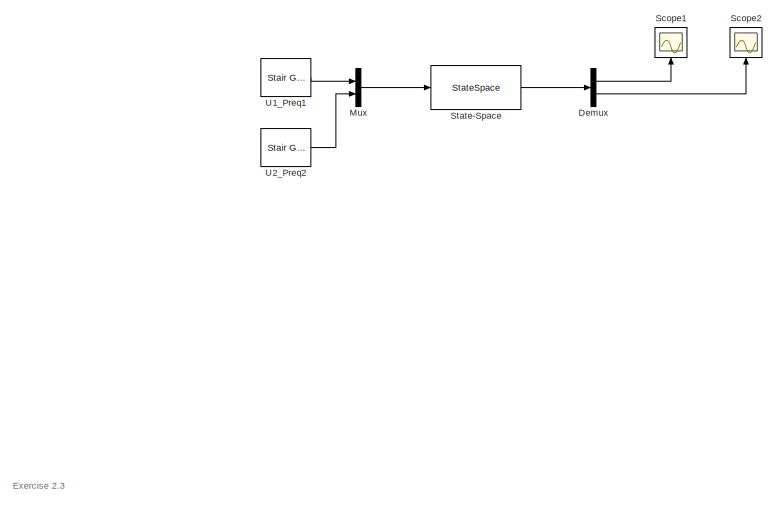
[diagram: root canvas - part 1/5, top left region]
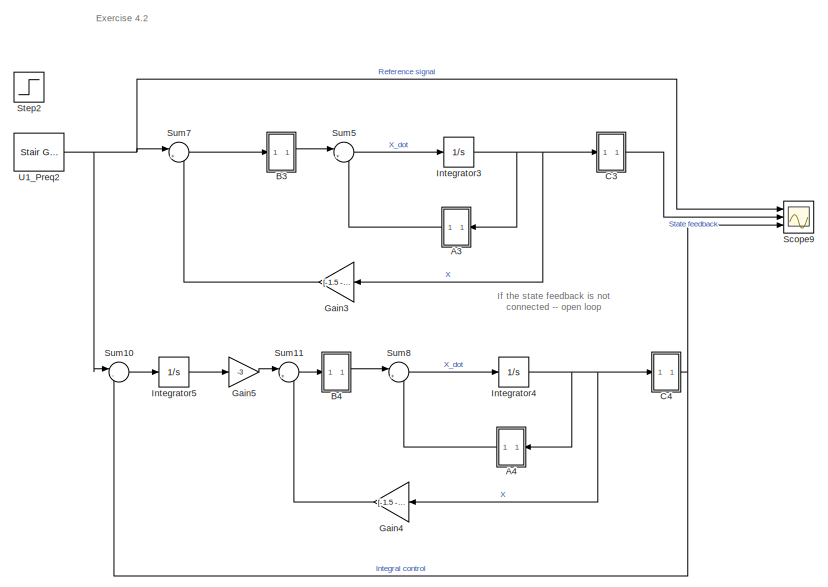
[diagram: root canvas - part 2/5, middle right region]
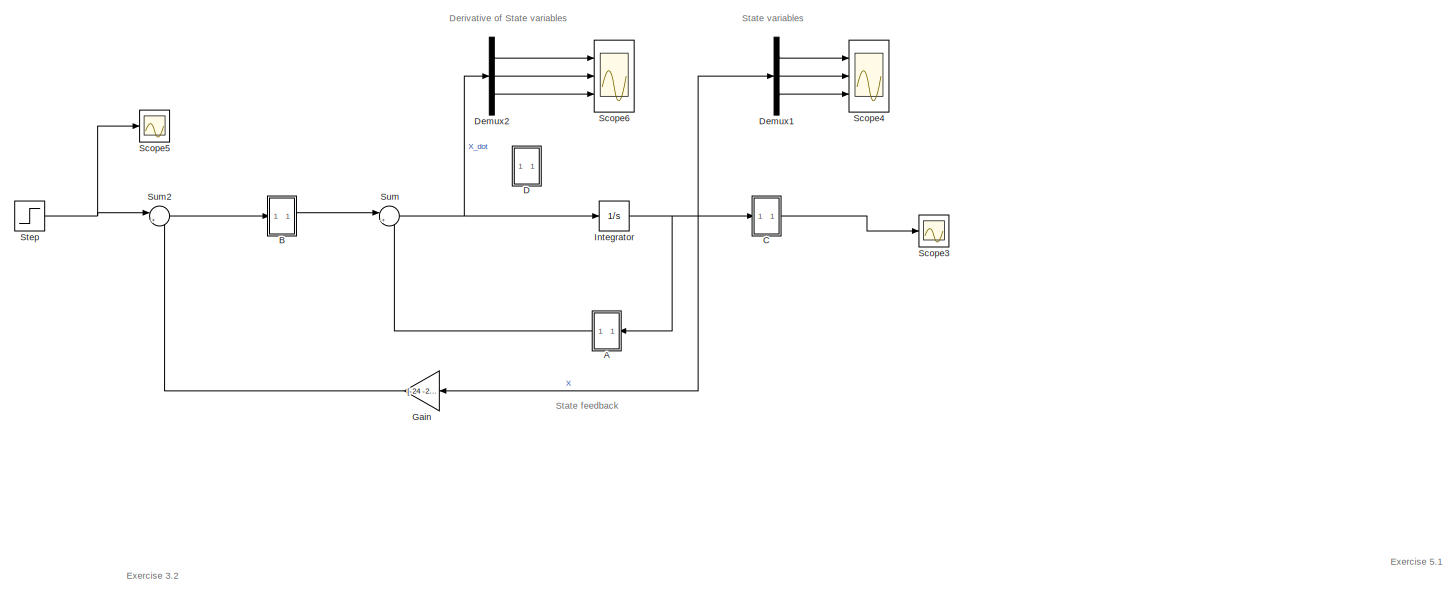
[diagram: root canvas - part 3/5, central region]
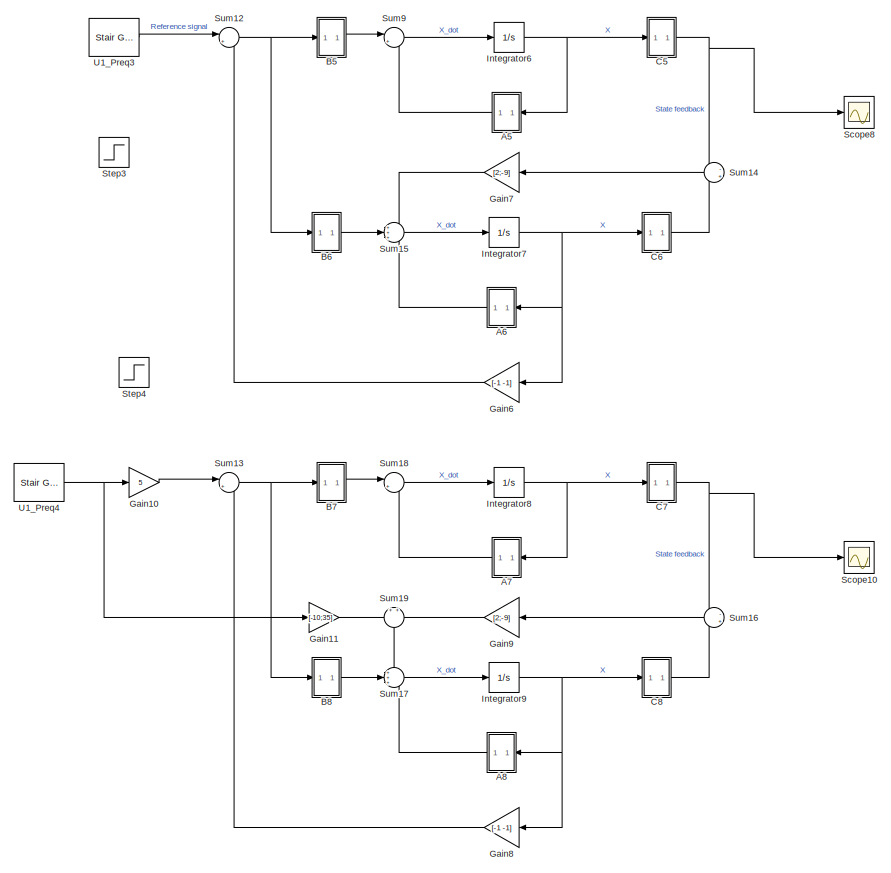
[diagram: root canvas - part 4/5, bottom right region]
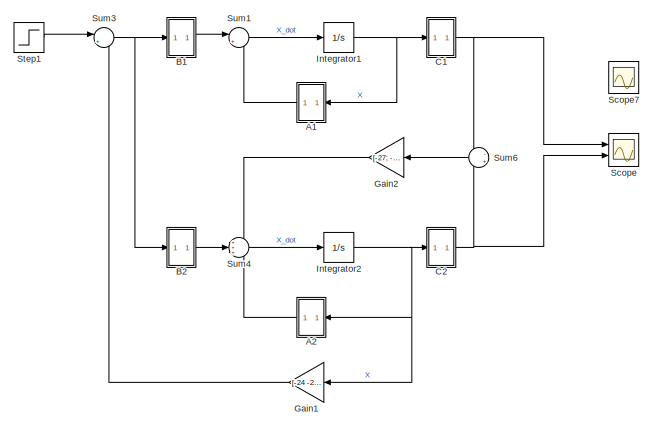
[diagram: root canvas - part 5/5, bottom left region]
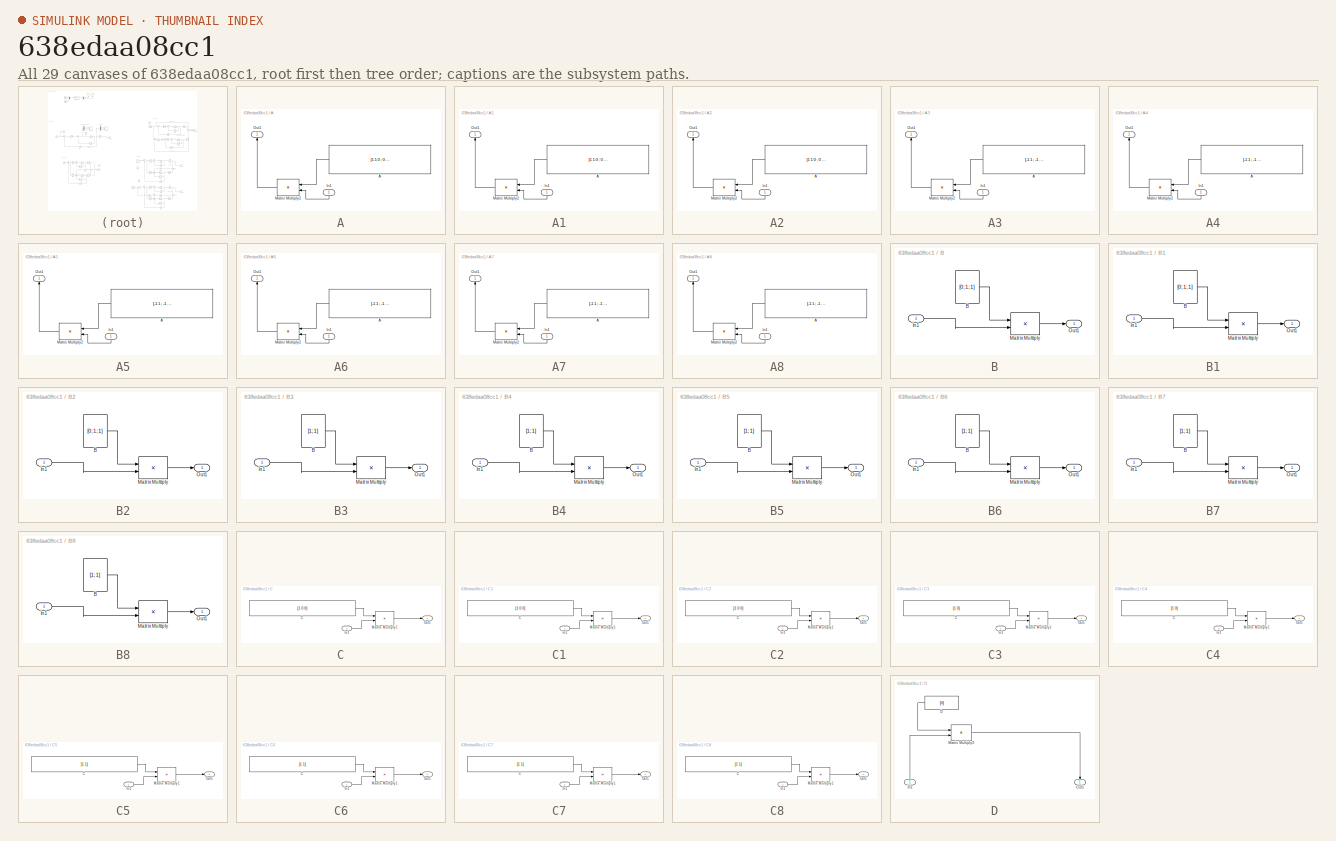
[diagram: thumbnail index - all 29 canvases of the model, root first then tree order]
MODEL slx_638edaa08cc1
KIND model
CONFIG AbsTol = auto
CONFIG EnableMultiTasking = off
CONFIG FixedStep = auto
CONFIG MaxStep = auto
CONFIG MinStep = auto
CONFIG RelTol = 1e-3
CONFIG SampleTimeConstraint = Unconstrained
CONFIG Solver = VariableStepAuto
CONFIG SolverName = VariableStepAuto
CONFIG StartTime = 0.0
CONFIG StopTime = 25
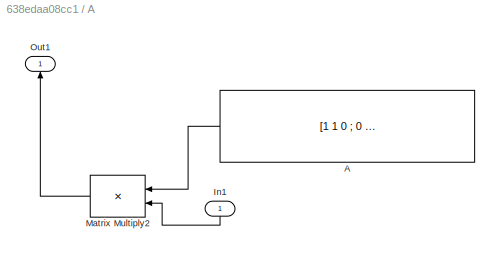
BLOCK [SubSystem] A
  Ports = [1, 1]
  RequestExecContextInheritance = off
  Variant = off
BLOCK [Constant] A/A
  Value = [1 1 0 ; 0 1 1; 0 0 1]
  VectorParams1D = off
BLOCK [Inport] A/In1
  IconDisplay = Port number
BLOCK [Product] A/Matrix Multiply2
  InputSameDT = off
  Multiplication = Matrix(*)
  OutDataTypeStr = Inherit: Inherit via internal rule
  Ports = [2, 1]
  RndMeth = Floor
  SaturateOnIntegerOverflow = off
BLOCK [Outport] A/Out1
  IconDisplay = Port number
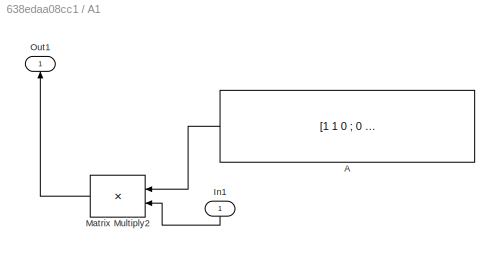
BLOCK [SubSystem] A1
  Ports = [1, 1]
  RequestExecContextInheritance = off
  Variant = off
BLOCK [Constant] A1/A
  Value = [1 1 0 ; 0 1 1; 0 0 1]
  VectorParams1D = off
BLOCK [Inport] A1/In1
  IconDisplay = Port number
BLOCK [Product] A1/Matrix Multiply2
  InputSameDT = off
  Multiplication = Matrix(*)
  OutDataTypeStr = Inherit: Inherit via internal rule
  Ports = [2, 1]
  RndMeth = Floor
  SaturateOnIntegerOverflow = off
BLOCK [Outport] A1/Out1
  IconDisplay = Port number
BLOCK [SubSystem] A2
  Ports = [1, 1]
  RequestExecContextInheritance = off
  Variant = off
BLOCK [Constant] A2/A
  Value = [1 1 0 ; 0 1 1; 0 0 1]
  VectorParams1D = off
BLOCK [Inport] A2/In1
  IconDisplay = Port number
BLOCK [Product] A2/Matrix Multiply2
  InputSameDT = off
  Multiplication = Matrix(*)
  OutDataTypeStr = Inherit: Inherit via internal rule
  Ports = [2, 1]
  RndMeth = Floor
  SaturateOnIntegerOverflow = off
BLOCK [Outport] A2/Out1
  IconDisplay = Port number
BLOCK [SubSystem] A3
  Ports = [1, 1]
  RequestExecContextInheritance = off
  Variant = off
BLOCK [Constant] A3/A
  Value = [-1 1 ; -1 -1]
  VectorParams1D = off
BLOCK [Inport] A3/In1
  IconDisplay = Port number
BLOCK [Product] A3/Matrix Multiply2
  InputSameDT = off
  Multiplication = Matrix(*)
  OutDataTypeStr = Inherit: Inherit via internal rule
  Ports = [2, 1]
  RndMeth = Floor
  SaturateOnIntegerOverflow = off
BLOCK [Outport] A3/Out1
  IconDisplay = Port number
BLOCK [SubSystem] A4
  Ports = [1, 1]
  RequestExecContextInheritance = off
  Variant = off
BLOCK [Constant] A4/A
  Value = [-1 1 ; -1 -1]
  VectorParams1D = off
BLOCK [Inport] A4/In1
  IconDisplay = Port number
BLOCK [Product] A4/Matrix Multiply2
  InputSameDT = off
  Multiplication = Matrix(*)
  OutDataTypeStr = Inherit: Inherit via internal rule
  Ports = [2, 1]
  RndMeth = Floor
  SaturateOnIntegerOverflow = off
BLOCK [Outport] A4/Out1
  IconDisplay = Port number
BLOCK [SubSystem] A5
  Ports = [1, 1]
  RequestExecContextInheritance = off
  Variant = off
BLOCK [Constant] A5/A
  Value = [-1 1 ; -1 -1]
  VectorParams1D = off
BLOCK [Inport] A5/In1
  IconDisplay = Port number
BLOCK [Product] A5/Matrix Multiply2
  InputSameDT = off
  Multiplication = Matrix(*)
  OutDataTypeStr = Inherit: Inherit via internal rule
  Ports = [2, 1]
  RndMeth = Floor
  SaturateOnIntegerOverflow = off
BLOCK [Outport] A5/Out1
  IconDisplay = Port number
BLOCK [SubSystem] A6
  Ports = [1, 1]
  RequestExecContextInheritance = off
  Variant = off
BLOCK [Constant] A6/A
  Value = [-1 1 ; -1 -1]
  VectorParams1D = off
BLOCK [Inport] A6/In1
  IconDisplay = Port number
BLOCK [Product] A6/Matrix Multiply2
  InputSameDT = off
  Multiplication = Matrix(*)
  OutDataTypeStr = Inherit: Inherit via internal rule
  Ports = [2, 1]
  RndMeth = Floor
  SaturateOnIntegerOverflow = off
BLOCK [Outport] A6/Out1
  IconDisplay = Port number
BLOCK [SubSystem] A7
  Ports = [1, 1]
  RequestExecContextInheritance = off
  Variant = off
BLOCK [Constant] A7/A
  Value = [-1 1 ; -1 -1]
  VectorParams1D = off
BLOCK [Inport] A7/In1
  IconDisplay = Port number
BLOCK [Product] A7/Matrix Multiply2
  InputSameDT = off
  Multiplication = Matrix(*)
  OutDataTypeStr = Inherit: Inherit via internal rule
  Ports = [2, 1]
  RndMeth = Floor
  SaturateOnIntegerOverflow = off
BLOCK [Outport] A7/Out1
  IconDisplay = Port number
BLOCK [SubSystem] A8
  Ports = [1, 1]
  RequestExecContextInheritance = off
  Variant = off
BLOCK [Constant] A8/A
  Value = [-1 1 ; -1 -1]
  VectorParams1D = off
BLOCK [Inport] A8/In1
  IconDisplay = Port number
BLOCK [Product] A8/Matrix Multiply2
  InputSameDT = off
  Multiplication = Matrix(*)
  OutDataTypeStr = Inherit: Inherit via internal rule
  Ports = [2, 1]
  RndMeth = Floor
  SaturateOnIntegerOverflow = off
BLOCK [Outport] A8/Out1
  IconDisplay = Port number
BLOCK [SubSystem] B
  Ports = [1, 1]
  RequestExecContextInheritance = off
  Variant = off
BLOCK [Constant] B/B
  Value = [0;\n1;\n1]
  VectorParams1D = off
BLOCK [Inport] B/In1
  IconDisplay = Port number
BLOCK [Product] B/Matrix Multiply
  InputSameDT = off
  Multiplication = Matrix(*)
  OutDataTypeStr = Inherit: Inherit via internal rule
  Ports = [2, 1]
  RndMeth = Floor
  SaturateOnIntegerOverflow = off
BLOCK [Outport] B/Out1
  IconDisplay = Port number
BLOCK [SubSystem] B1
  Ports = [1, 1]
  RequestExecContextInheritance = off
  Variant = off
BLOCK [Constant] B1/B
  Value = [0;\n1;\n1]
  VectorParams1D = off
BLOCK [Inport] B1/In1
  IconDisplay = Port number
BLOCK [Product] B1/Matrix Multiply
  InputSameDT = off
  Multiplication = Matrix(*)
  OutDataTypeStr = Inherit: Inherit via internal rule
  Ports = [2, 1]
  RndMeth = Floor
  SaturateOnIntegerOverflow = off
BLOCK [Outport] B1/Out1
  IconDisplay = Port number
BLOCK [SubSystem] B2
  Ports = [1, 1]
  RequestExecContextInheritance = off
  Variant = off
BLOCK [Constant] B2/B
  Value = [0;\n1;\n1]
  VectorParams1D = off
BLOCK [Inport] B2/In1
  IconDisplay = Port number
BLOCK [Product] B2/Matrix Multiply
  InputSameDT = off
  Multiplication = Matrix(*)
  OutDataTypeStr = Inherit: Inherit via internal rule
  Ports = [2, 1]
  RndMeth = Floor
  SaturateOnIntegerOverflow = off
BLOCK [Outport] B2/Out1
  IconDisplay = Port number
BLOCK [SubSystem] B3
  Ports = [1, 1]
  RequestExecContextInheritance = off
  Variant = off
BLOCK [Constant] B3/B
  Value = [1;\n1]
  VectorParams1D = off
BLOCK [Inport] B3/In1
  IconDisplay = Port number
BLOCK [Product] B3/Matrix Multiply
  InputSameDT = off
  Multiplication = Matrix(*)
  OutDataTypeStr = Inherit: Inherit via internal rule
  Ports = [2, 1]
  RndMeth = Floor
  SaturateOnIntegerOverflow = off
BLOCK [Outport] B3/Out1
  IconDisplay = Port number
BLOCK [SubSystem] B4
  Ports = [1, 1]
  RequestExecContextInheritance = off
  Variant = off
BLOCK [Constant] B4/B
  Value = [1;\n1]
  VectorParams1D = off
BLOCK [Inport] B4/In1
  IconDisplay = Port number
BLOCK [Product] B4/Matrix Multiply
  InputSameDT = off
  Multiplication = Matrix(*)
  OutDataTypeStr = Inherit: Inherit via internal rule
  Ports = [2, 1]
  RndMeth = Floor
  SaturateOnIntegerOverflow = off
BLOCK [Outport] B4/Out1
  IconDisplay = Port number
BLOCK [SubSystem] B5
  Ports = [1, 1]
  RequestExecContextInheritance = off
  Variant = off
BLOCK [Constant] B5/B
  Value = [1;\n1]
  VectorParams1D = off
BLOCK [Inport] B5/In1
  IconDisplay = Port number
BLOCK [Product] B5/Matrix Multiply
  InputSameDT = off
  Multiplication = Matrix(*)
  OutDataTypeStr = Inherit: Inherit via internal rule
  Ports = [2, 1]
  RndMeth = Floor
  SaturateOnIntegerOverflow = off
BLOCK [Outport] B5/Out1
  IconDisplay = Port number
BLOCK [SubSystem] B6
  Ports = [1, 1]
  RequestExecContextInheritance = off
  Variant = off
BLOCK [Constant] B6/B
  Value = [1;\n1]
  VectorParams1D = off
BLOCK [Inport] B6/In1
  IconDisplay = Port number
BLOCK [Product] B6/Matrix Multiply
  InputSameDT = off
  Multiplication = Matrix(*)
  OutDataTypeStr = Inherit: Inherit via internal rule
  Ports = [2, 1]
  RndMeth = Floor
  SaturateOnIntegerOverflow = off
BLOCK [Outport] B6/Out1
  IconDisplay = Port number
BLOCK [SubSystem] B7
  Ports = [1, 1]
  RequestExecContextInheritance = off
  Variant = off
BLOCK [Constant] B7/B
  Value = [1;\n1]
  VectorParams1D = off
BLOCK [Inport] B7/In1
  IconDisplay = Port number
BLOCK [Product] B7/Matrix Multiply
  InputSameDT = off
  Multiplication = Matrix(*)
  OutDataTypeStr = Inherit: Inherit via internal rule
  Ports = [2, 1]
  RndMeth = Floor
  SaturateOnIntegerOverflow = off
BLOCK [Outport] B7/Out1
  IconDisplay = Port number
BLOCK [SubSystem] B8
  Ports = [1, 1]
  RequestExecContextInheritance = off
  Variant = off
BLOCK [Constant] B8/B
  Value = [1;\n1]
  VectorParams1D = off
BLOCK [Inport] B8/In1
  IconDisplay = Port number
BLOCK [Product] B8/Matrix Multiply
  InputSameDT = off
  Multiplication = Matrix(*)
  OutDataTypeStr = Inherit: Inherit via internal rule
  Ports = [2, 1]
  RndMeth = Floor
  SaturateOnIntegerOverflow = off
BLOCK [Outport] B8/Out1
  IconDisplay = Port number
BLOCK [SubSystem] C
  Ports = [1, 1]
  RequestExecContextInheritance = off
  Variant = off
BLOCK [Constant] C/C
  Value = [1 0 0]
  VectorParams1D = off
BLOCK [Inport] C/In1
  IconDisplay = Port number
BLOCK [Product] C/Matrix Multiply1
  InputSameDT = off
  Multiplication = Matrix(*)
  OutDataTypeStr = Inherit: Inherit via internal rule
  Ports = [2, 1]
  RndMeth = Floor
  SaturateOnIntegerOverflow = off
BLOCK [Outport] C/Out1
  IconDisplay = Port number
BLOCK [SubSystem] C1
  Ports = [1, 1]
  RequestExecContextInheritance = off
  Variant = off
BLOCK [Constant] C1/C
  Value = [1 0 0]
  VectorParams1D = off
BLOCK [Inport] C1/In1
  IconDisplay = Port number
BLOCK [Product] C1/Matrix Multiply1
  InputSameDT = off
  Multiplication = Matrix(*)
  OutDataTypeStr = Inherit: Inherit via internal rule
  Ports = [2, 1]
  RndMeth = Floor
  SaturateOnIntegerOverflow = off
BLOCK [Outport] C1/Out1
  IconDisplay = Port number
BLOCK [SubSystem] C2
  Ports = [1, 1]
  RequestExecContextInheritance = off
  Variant = off
BLOCK [Constant] C2/C
  Value = [1 0 0]
  VectorParams1D = off
BLOCK [Inport] C2/In1
  IconDisplay = Port number
BLOCK [Product] C2/Matrix Multiply1
  InputSameDT = off
  Multiplication = Matrix(*)
  OutDataTypeStr = Inherit: Inherit via internal rule
  Ports = [2, 1]
  RndMeth = Floor
  SaturateOnIntegerOverflow = off
BLOCK [Outport] C2/Out1
  IconDisplay = Port number
BLOCK [SubSystem] C3
  Ports = [1, 1]
  RequestExecContextInheritance = off
  Variant = off
BLOCK [Constant] C3/C
  Value = [1 0]
  VectorParams1D = off
BLOCK [Inport] C3/In1
  IconDisplay = Port number
BLOCK [Product] C3/Matrix Multiply1
  InputSameDT = off
  Multiplication = Matrix(*)
  OutDataTypeStr = Inherit: Inherit via internal rule
  Ports = [2, 1]
  RndMeth = Floor
  SaturateOnIntegerOverflow = off
BLOCK [Outport] C3/Out1
  IconDisplay = Port number
BLOCK [SubSystem] C4
  Ports = [1, 1]
  RequestExecContextInheritance = off
  Variant = off
BLOCK [Constant] C4/C
  Value = [1 0]
  VectorParams1D = off
BLOCK [Inport] C4/In1
  IconDisplay = Port number
BLOCK [Product] C4/Matrix Multiply1
  InputSameDT = off
  Multiplication = Matrix(*)
  OutDataTypeStr = Inherit: Inherit via internal rule
  Ports = [2, 1]
  RndMeth = Floor
  SaturateOnIntegerOverflow = off
BLOCK [Outport] C4/Out1
  IconDisplay = Port number
BLOCK [SubSystem] C5
  Ports = [1, 1]
  RequestExecContextInheritance = off
  Variant = off
BLOCK [Constant] C5/C
  Value = [1 1]
  VectorParams1D = off
BLOCK [Inport] C5/In1
  IconDisplay = Port number
BLOCK [Product] C5/Matrix Multiply1
  InputSameDT = off
  Multiplication = Matrix(*)
  OutDataTypeStr = Inherit: Inherit via internal rule
  Ports = [2, 1]
  RndMeth = Floor
  SaturateOnIntegerOverflow = off
BLOCK [Outport] C5/Out1
  IconDisplay = Port number
BLOCK [SubSystem] C6
  Ports = [1, 1]
  RequestExecContextInheritance = off
  Variant = off
BLOCK [Constant] C6/C
  Value = [1 1]
  VectorParams1D = off
BLOCK [Inport] C6/In1
  IconDisplay = Port number
BLOCK [Product] C6/Matrix Multiply1
  InputSameDT = off
  Multiplication = Matrix(*)
  OutDataTypeStr = Inherit: Inherit via internal rule
  Ports = [2, 1]
  RndMeth = Floor
  SaturateOnIntegerOverflow = off
BLOCK [Outport] C6/Out1
  IconDisplay = Port number
BLOCK [SubSystem] C7
  Ports = [1, 1]
  RequestExecContextInheritance = off
  Variant = off
BLOCK [Constant] C7/C
  Value = [1 1]
  VectorParams1D = off
BLOCK [Inport] C7/In1
  IconDisplay = Port number
BLOCK [Product] C7/Matrix Multiply1
  InputSameDT = off
  Multiplication = Matrix(*)
  OutDataTypeStr = Inherit: Inherit via internal rule
  Ports = [2, 1]
  RndMeth = Floor
  SaturateOnIntegerOverflow = off
BLOCK [Outport] C7/Out1
  IconDisplay = Port number
BLOCK [SubSystem] C8
  Ports = [1, 1]
  RequestExecContextInheritance = off
  Variant = off
BLOCK [Constant] C8/C
  Value = [1 1]
  VectorParams1D = off
BLOCK [Inport] C8/In1
  IconDisplay = Port number
BLOCK [Product] C8/Matrix Multiply1
  InputSameDT = off
  Multiplication = Matrix(*)
  OutDataTypeStr = Inherit: Inherit via internal rule
  Ports = [2, 1]
  RndMeth = Floor
  SaturateOnIntegerOverflow = off
BLOCK [Outport] C8/Out1
  IconDisplay = Port number
BLOCK [SubSystem] D
  Ports = [1, 1]
  RequestExecContextInheritance = off
  Variant = off
BLOCK [Constant] D/D
  Value = [0]
  VectorParams1D = off
BLOCK [Inport] D/In1
  IconDisplay = Port number
BLOCK [Product] D/Matrix Multiply3
  InputSameDT = off
  Multiplication = Matrix(*)
  OutDataTypeStr = Inherit: Inherit via internal rule
  Ports = [2, 1]
  RndMeth = Floor
  SaturateOnIntegerOverflow = off
BLOCK [Outport] D/Out1
  IconDisplay = Port number
BLOCK [Demux] Demux
  DisplayOption = bar
  Outputs = 2
  Ports = [1, 2]
BLOCK [Demux] Demux1
  DisplayOption = bar
  Outputs = 3
  Ports = [1, 3]
BLOCK [Demux] Demux2
  DisplayOption = bar
  Outputs = 3
  Ports = [1, 3]
BLOCK [Gain] Gain
  Gain = [-24 -2 -7]
  Multiplication = Matrix(K*u)
  OutDataTypeStr = Inherit: Inherit via internal rule
  ParamDataTypeStr = Inherit: Inherit via internal rule
  SaturateOnIntegerOverflow = off
BLOCK [Gain] Gain1
  Gain = [-24 -2 -7]
  Multiplication = Matrix(K*u)
  OutDataTypeStr = Inherit: Inherit via internal rule
  ParamDataTypeStr = Inherit: Inherit via internal rule
  SaturateOnIntegerOverflow = off
BLOCK [Gain] Gain10
  Gain = 5
  OutDataTypeStr = Inherit: Inherit via internal rule
  ParamDataTypeStr = Inherit: Inherit via internal rule
  SaturateOnIntegerOverflow = off
BLOCK [Gain] Gain11
  Gain = [-10;35]
  OutDataTypeStr = Inherit: Inherit via internal rule
  ParamDataTypeStr = Inherit: Inherit via internal rule
  SaturateOnIntegerOverflow = off
BLOCK [Gain] Gain2
  Gain = [-27; -227; -585]
  Multiplication = Matrix(K*u)
  OutDataTypeStr = Inherit: Inherit via internal rule
  ParamDataTypeStr = Inherit: Inherit via internal rule
  SaturateOnIntegerOverflow = off
BLOCK [Gain] Gain3
  Gain = [-1.5 -2.5]
  Multiplication = Matrix(K*u)
  OutDataTypeStr = Inherit: Inherit via internal rule
  ParamDataTypeStr = Inherit: Inherit via internal rule
  SaturateOnIntegerOverflow = off
BLOCK [Gain] Gain4
  Gain = [-1.5 -2.5]
  Multiplication = Matrix(K*u)
  OutDataTypeStr = Inherit: Inherit via internal rule
  ParamDataTypeStr = Inherit: Inherit via internal rule
  SaturateOnIntegerOverflow = off
BLOCK [Gain] Gain5
  Gain = -3
  OutDataTypeStr = Inherit: Inherit via internal rule
  ParamDataTypeStr = Inherit: Inherit via internal rule
  SaturateOnIntegerOverflow = off
BLOCK [Gain] Gain6
  Gain = [-1 -1]
  Multiplication = Matrix(K*u)
  OutDataTypeStr = Inherit: Inherit via internal rule
  ParamDataTypeStr = Inherit: Inherit via internal rule
  SaturateOnIntegerOverflow = off
BLOCK [Gain] Gain7
  Gain = [2;-9]
  Multiplication = Matrix(K*u)
  OutDataTypeStr = Inherit: Inherit via internal rule
  ParamDataTypeStr = Inherit: Inherit via internal rule
  SaturateOnIntegerOverflow = off
BLOCK [Gain] Gain8
  Gain = [-1 -1]
  Multiplication = Matrix(K*u)
  OutDataTypeStr = Inherit: Inherit via internal rule
  ParamDataTypeStr = Inherit: Inherit via internal rule
  SaturateOnIntegerOverflow = off
BLOCK [Gain] Gain9
  Gain = [2;-9]
  Multiplication = Matrix(K*u)
  OutDataTypeStr = Inherit: Inherit via internal rule
  ParamDataTypeStr = Inherit: Inherit via internal rule
  SaturateOnIntegerOverflow = off
BLOCK [Integrator] Integrator
  Ports = [1, 1]
BLOCK [Integrator] Integrator1
  InitialCondition = -1
  Ports = [1, 1]
BLOCK [Integrator] Integrator2
  Ports = [1, 1]
BLOCK [Integrator] Integrator3
  Ports = [1, 1]
BLOCK [Integrator] Integrator4
  Ports = [1, 1]
BLOCK [Integrator] Integrator5
  Ports = [1, 1]
BLOCK [Integrator] Integrator6
  Ports = [1, 1]
BLOCK [Integrator] Integrator7
  Ports = [1, 1]
BLOCK [Integrator] Integrator8
  Ports = [1, 1]
BLOCK [Integrator] Integrator9
  Ports = [1, 1]
BLOCK [Mux] Mux
  DisplayOption = bar
  Inputs = 2
  Ports = [2, 1]
BLOCK [Scope] Scope
  NumInputPorts = 2
  Ports = [2]
  ScopeSpecificationString = Simulink.scopes.TimeScopeBlockCfg('CurrentConfiguration', extmgr.ConfigurationSet(extmgr.Configuration('Core','General UI',true),extmgr.Configuration('Core','Source UI',true),extmgr.Configuration('Sources','WiredSimulink',true,'DataLoggingVariableName','ScopeData6'),extmgr.Configuration('Visuals','Time Domain',true,'SerializedDisplays',{struct('MinYLimReal','-1.3659','MaxYLimReal','1.86062','YLabe...<+1435ch>
BLOCK [Scope] Scope1
  NumInputPorts = 1
  Ports = [1]
  ScopeSpecificationString = Simulink.scopes.TimeScopeBlockCfg('CurrentConfiguration', extmgr.ConfigurationSet(extmgr.Configuration('Core','General UI',true),extmgr.Configuration('Core','Source UI',true),extmgr.Configuration('Sources','WiredSimulink',true),extmgr.Configuration('Visuals','Time Domain',true,'SerializedDisplays',{struct('MinYLimReal','-10638.76412','MaxYLimReal','14034.46007','YLabelReal','','MinYLimMag','   0.0...<+1383ch>
BLOCK [Scope] Scope10
  NumInputPorts = 1
  Ports = [1]
  ScopeSpecificationString = Simulink.scopes.TimeScopeBlockCfg('CurrentConfiguration', extmgr.ConfigurationSet(extmgr.Configuration('Core','General UI',true),extmgr.Configuration('Core','Source UI',true),extmgr.Configuration('Sources','WiredSimulink',true,'DataLoggingVariableName','ScopeData8'),extmgr.Configuration('Visuals','Time Domain',true,'SerializedDisplays',{struct('MinYLimReal','-1.9742','MaxYLimReal','2.46793','YLabe...<+1443ch>
BLOCK [Scope] Scope2
  NumInputPorts = 1
  Ports = [1]
  ScopeSpecificationString = Simulink.scopes.TimeScopeBlockCfg('CurrentConfiguration', extmgr.ConfigurationSet(extmgr.Configuration('Core','General UI',true),extmgr.Configuration('Core','Source UI',true),extmgr.Configuration('Sources','WiredSimulink',true,'DataLoggingVariableName','ScopeData1'),extmgr.Configuration('Visuals','Time Domain',true,'SerializedDisplays',{struct('MinYLimReal','-1885.48674','MaxYLimReal','16969.38068...<+1424ch>
BLOCK [Scope] Scope3
  NumInputPorts = 1
  Ports = [1]
  ScopeSpecificationString = Simulink.scopes.TimeScopeBlockCfg('CurrentConfiguration', extmgr.ConfigurationSet(extmgr.Configuration('Core','General UI',true),extmgr.Configuration('Core','Source UI',true),extmgr.Configuration('Sources','WiredSimulink',true,'DataLoggingVariableName','ScopeData1'),extmgr.Configuration('Visuals','Time Domain',true,'SerializedDisplays',{struct('MinYLimReal','-0.00926','MaxYLimReal','0.08333','YLab...<+1385ch>
BLOCK [Scope] Scope4
  NumInputPorts = 3
  Ports = [3]
  ScopeSpecificationString = Simulink.scopes.TimeScopeBlockCfg('CurrentConfiguration', extmgr.ConfigurationSet(extmgr.Configuration('Core','General UI',true),extmgr.Configuration('Core','Source UI',true),extmgr.Configuration('Sources','WiredSimulink',true,'DataLoggingVariableName','ScopeData2'),extmgr.Configuration('Visuals','Time Domain',true,'SerializedDisplays',{struct('MinYLimReal','-0.00926','MaxYLimReal','0.0833','YLabe...<+3412ch>
BLOCK [Scope] Scope5
  NumInputPorts = 1
  Ports = [1]
  ScopeSpecificationString = Simulink.scopes.TimeScopeBlockCfg('CurrentConfiguration', extmgr.ConfigurationSet(extmgr.Configuration('Core','General UI',true),extmgr.Configuration('Core','Source UI',true),extmgr.Configuration('Sources','WiredSimulink',true,'DataLoggingVariableName','ScopeData3'),extmgr.Configuration('Visuals','Time Domain',true,'SerializedDisplays',{struct('MinYLimReal','-0.125','MaxYLimReal','1.125','YLabelRe...<+1376ch>
BLOCK [Scope] Scope6
  NumInputPorts = 3
  Ports = [3]
  ScopeSpecificationString = Simulink.scopes.TimeScopeBlockCfg('CurrentConfiguration', extmgr.ConfigurationSet(extmgr.Configuration('Core','General UI',true),extmgr.Configuration('Core','Source UI',true),extmgr.Configuration('Sources','WiredSimulink',true,'DataLoggingVariableName','ScopeData6'),extmgr.Configuration('Visuals','Time Domain',true,'SerializedDisplays',{struct('MinYLimReal','-1727143026.68297','MaxYLimReal','15544...<+3487ch>
BLOCK [Scope] Scope7
  NumInputPorts = 1
  Ports = [1]
  ScopeSpecificationString = Simulink.scopes.TimeScopeBlockCfg('CurrentConfiguration', extmgr.ConfigurationSet(extmgr.Configuration('Core','General UI',true),extmgr.Configuration('Core','Source UI',true),extmgr.Configuration('Sources','WiredSimulink',true,'DataLoggingVariableName','ScopeData4'),extmgr.Configuration('Visuals','Time Domain',true,'SerializedDisplays',{struct('MinYLimReal','-1.00000','MaxYLimReal','1.00000','YLab...<+1393ch>
BLOCK [Scope] Scope8
  NumInputPorts = 1
  Ports = [1]
  ScopeSpecificationString = Simulink.scopes.TimeScopeBlockCfg('CurrentConfiguration', extmgr.ConfigurationSet(extmgr.Configuration('Core','General UI',true),extmgr.Configuration('Core','Source UI',true),extmgr.Configuration('Sources','WiredSimulink',true,'DataLoggingVariableName','ScopeData5'),extmgr.Configuration('Visuals','Time Domain',true,'SerializedDisplays',{struct('MinYLimReal','-0.92942','MaxYLimReal','1.36465','YLab...<+1417ch>
BLOCK [Scope] Scope9
  NumInputPorts = 3
  Ports = [3]
  ScopeSpecificationString = Simulink.scopes.TimeScopeBlockCfg('CurrentConfiguration', extmgr.ConfigurationSet(extmgr.Configuration('Core','General UI',true),extmgr.Configuration('Core','Source UI',true),extmgr.Configuration('Sources','WiredSimulink',true,'DataLoggingVariableName','ScopeData7'),extmgr.Configuration('Visuals','Time Domain',true,'SerializedDisplays',{struct('MinYLimReal','-1.77507','MaxYLimReal','2.66501','YLab...<+1457ch>
BLOCK [StateSpace] State-Space
  A = [-5.2159 -79.1175 -0.7209 -0.7209; 1 0 0 0; 0 0 -1.4430 -0.7209; 0 0 1 0]
  B = [1 0;\n0 0;\n0 1; 0 0]
  C = [-1.3307 2.8087 -0.69530805 -0.69530805;\n0 0 0.7209 0.7209]
  D = [0.9645 0; 0 0]
  Ports = [1, 1]
  X0 = 0
BLOCK [Step] Step
  SampleTime = 0
  Time = 3
BLOCK [Step] Step1
  SampleTime = 0
  Time = 3
BLOCK [Step] Step2
  SampleTime = 0
  Time = 3
BLOCK [Step] Step3
  SampleTime = 0
  Time = 3
BLOCK [Step] Step4
  SampleTime = 0
  Time = 3
BLOCK [Sum] Sum
  IconShape = round
  InputSameDT = off
  Inputs = |++
  OutDataTypeStr = Inherit: Inherit via internal rule
  Ports = [2, 1]
  SaturateOnIntegerOverflow = off
BLOCK [Sum] Sum1
  IconShape = round
  InputSameDT = off
  Inputs = |++
  OutDataTypeStr = Inherit: Inherit via internal rule
  Ports = [2, 1]
  SaturateOnIntegerOverflow = off
BLOCK [Sum] Sum10
  IconShape = round
  InputSameDT = off
  Inputs = |-+
  OutDataTypeStr = Inherit: Inherit via internal rule
  Ports = [2, 1]
  SaturateOnIntegerOverflow = off
BLOCK [Sum] Sum11
  IconShape = round
  InputSameDT = off
  Inputs = |++
  OutDataTypeStr = Inherit: Inherit via internal rule
  Ports = [2, 1]
  SaturateOnIntegerOverflow = off
BLOCK [Sum] Sum12
  IconShape = round
  InputSameDT = off
  Inputs = |++
  OutDataTypeStr = Inherit: Inherit via internal rule
  Ports = [2, 1]
  SaturateOnIntegerOverflow = off
BLOCK [Sum] Sum13
  IconShape = round
  InputSameDT = off
  Inputs = |++
  OutDataTypeStr = Inherit: Inherit via internal rule
  Ports = [2, 1]
  SaturateOnIntegerOverflow = off
BLOCK [Sum] Sum14
  IconShape = round
  InputSameDT = off
  Inputs = -+
  OutDataTypeStr = Inherit: Inherit via internal rule
  Ports = [2, 1]
  SaturateOnIntegerOverflow = off
BLOCK [Sum] Sum15
  IconShape = round
  InputSameDT = off
  Inputs = +++
  OutDataTypeStr = Inherit: Inherit via internal rule
  Ports = [3, 1]
  SaturateOnIntegerOverflow = off
BLOCK [Sum] Sum16
  IconShape = round
  InputSameDT = off
  Inputs = -+
  OutDataTypeStr = Inherit: Inherit via internal rule
  Ports = [2, 1]
  SaturateOnIntegerOverflow = off
BLOCK [Sum] Sum17
  IconShape = round
  InputSameDT = off
  Inputs = +++
  OutDataTypeStr = Inherit: Inherit via internal rule
  Ports = [3, 1]
  SaturateOnIntegerOverflow = off
BLOCK [Sum] Sum18
  IconShape = round
  InputSameDT = off
  Inputs = |++
  OutDataTypeStr = Inherit: Inherit via internal rule
  Ports = [2, 1]
  SaturateOnIntegerOverflow = off
BLOCK [Sum] Sum19
  IconShape = round
  InputSameDT = off
  OutDataTypeStr = Inherit: Inherit via internal rule
  Ports = [2, 1]
  SaturateOnIntegerOverflow = off
BLOCK [Sum] Sum2
  IconShape = round
  InputSameDT = off
  Inputs = |++
  OutDataTypeStr = Inherit: Inherit via internal rule
  Ports = [2, 1]
  SaturateOnIntegerOverflow = off
BLOCK [Sum] Sum3
  IconShape = round
  InputSameDT = off
  Inputs = |++
  OutDataTypeStr = Inherit: Inherit via internal rule
  Ports = [2, 1]
  SaturateOnIntegerOverflow = off
BLOCK [Sum] Sum4
  IconShape = round
  InputSameDT = off
  Inputs = +++
  OutDataTypeStr = Inherit: Inherit via internal rule
  Ports = [3, 1]
  SaturateOnIntegerOverflow = off
BLOCK [Sum] Sum5
  IconShape = round
  InputSameDT = off
  Inputs = |++
  OutDataTypeStr = Inherit: Inherit via internal rule
  Ports = [2, 1]
  SaturateOnIntegerOverflow = off
BLOCK [Sum] Sum6
  IconShape = round
  InputSameDT = off
  Inputs = -+
  OutDataTypeStr = Inherit: Inherit via internal rule
  Ports = [2, 1]
  SaturateOnIntegerOverflow = off
BLOCK [Sum] Sum7
  IconShape = round
  InputSameDT = off
  Inputs = |++
  OutDataTypeStr = Inherit: Inherit via internal rule
  Ports = [2, 1]
  SaturateOnIntegerOverflow = off
BLOCK [Sum] Sum8
  IconShape = round
  InputSameDT = off
  Inputs = |++
  OutDataTypeStr = Inherit: Inherit via internal rule
  Ports = [2, 1]
  SaturateOnIntegerOverflow = off
BLOCK [Sum] Sum9
  IconShape = round
  InputSameDT = off
  Inputs = |++
  OutDataTypeStr = Inherit: Inherit via internal rule
  Ports = [2, 1]
  SaturateOnIntegerOverflow = off
BLOCK [Reference] U1_Preq1  REF=powerlib_meascontrol/Pulse & Signal
Generators/Stair
Generator
  Ports = [0, 1]
  SourceBlock = powerlib_meascontrol/Pulse & Signal\nGenerators/Stair\nGenerator
  SourceType = Stair Generator
BLOCK [Reference] U1_Preq2  REF=powerlib_meascontrol/Pulse & Signal
Generators/Stair
Generator
  Ports = [0, 1]
  SourceBlock = powerlib_meascontrol/Pulse & Signal\nGenerators/Stair\nGenerator
  SourceType = Stair Generator
BLOCK [Reference] U1_Preq3  REF=powerlib_meascontrol/Pulse & Signal
Generators/Stair
Generator
  Ports = [0, 1]
  SourceBlock = powerlib_meascontrol/Pulse & Signal\nGenerators/Stair\nGenerator
  SourceType = Stair Generator
BLOCK [Reference] U1_Preq4  REF=powerlib_meascontrol/Pulse & Signal
Generators/Stair
Generator
  Ports = [0, 1]
  SourceBlock = powerlib_meascontrol/Pulse & Signal\nGenerators/Stair\nGenerator
  SourceType = Stair Generator
BLOCK [Reference] U2_Preq2  REF=powerlib_meascontrol/Pulse & Signal
Generators/Stair
Generator
  Ports = [0, 1]
  SourceBlock = powerlib_meascontrol/Pulse & Signal\nGenerators/Stair\nGenerator
  SourceType = Stair Generator
ANNOTATION (root): Derivative of State variables
ANNOTATION (root): State variables
ANNOTATION (root): Exercise 2.3
ANNOTATION (root): Exercise 3.2
ANNOTATION (root): Exercise 4.2
ANNOTATION (root): Exercise 5.1
ANNOTATION (root): If the state feedback is not connected -- open loop
ANNOTATION (root): State feedback
LINE A/A:1 -> A/Matrix Multiply2:1
LINE A/In1:1 -> A/Matrix Multiply2:2
LINE A/Matrix Multiply2:1 -> A/Out1:1
LINE A1/A:1 -> A1/Matrix Multiply2:1
LINE A1/In1:1 -> A1/Matrix Multiply2:2
LINE A1/Matrix Multiply2:1 -> A1/Out1:1
LINE A1:1 -> Sum1:2
LINE A2/A:1 -> A2/Matrix Multiply2:1
LINE A2/In1:1 -> A2/Matrix Multiply2:2
LINE A2/Matrix Multiply2:1 -> A2/Out1:1
LINE A2:1 -> Sum4:3
LINE A3/A:1 -> A3/Matrix Multiply2:1
LINE A3/In1:1 -> A3/Matrix Multiply2:2
LINE A3/Matrix Multiply2:1 -> A3/Out1:1
LINE A3:1 -> Sum5:2
LINE A4/A:1 -> A4/Matrix Multiply2:1
LINE A4/In1:1 -> A4/Matrix Multiply2:2
LINE A4/Matrix Multiply2:1 -> A4/Out1:1
LINE A4:1 -> Sum8:2
LINE A5/A:1 -> A5/Matrix Multiply2:1
LINE A5/In1:1 -> A5/Matrix Multiply2:2
LINE A5/Matrix Multiply2:1 -> A5/Out1:1
LINE A5:1 -> Sum9:2
LINE A6/A:1 -> A6/Matrix Multiply2:1
LINE A6/In1:1 -> A6/Matrix Multiply2:2
LINE A6/Matrix Multiply2:1 -> A6/Out1:1
LINE A6:1 -> Sum15:3
LINE A7/A:1 -> A7/Matrix Multiply2:1
LINE A7/In1:1 -> A7/Matrix Multiply2:2
LINE A7/Matrix Multiply2:1 -> A7/Out1:1
LINE A7:1 -> Sum18:2
LINE A8/A:1 -> A8/Matrix Multiply2:1
LINE A8/In1:1 -> A8/Matrix Multiply2:2
LINE A8/Matrix Multiply2:1 -> A8/Out1:1
LINE A8:1 -> Sum17:3
LINE A:1 -> Sum:2
LINE B/B:1 -> B/Matrix Multiply:1
LINE B/In1:1 -> B/Matrix Multiply:2
LINE B/Matrix Multiply:1 -> B/Out1:1
LINE B1/B:1 -> B1/Matrix Multiply:1
LINE B1/In1:1 -> B1/Matrix Multiply:2
LINE B1/Matrix Multiply:1 -> B1/Out1:1
LINE B1:1 -> Sum1:1
LINE B2/B:1 -> B2/Matrix Multiply:1
LINE B2/In1:1 -> B2/Matrix Multiply:2
LINE B2/Matrix Multiply:1 -> B2/Out1:1
LINE B2:1 -> Sum4:2
LINE B3/B:1 -> B3/Matrix Multiply:1
LINE B3/In1:1 -> B3/Matrix Multiply:2
LINE B3/Matrix Multiply:1 -> B3/Out1:1
LINE B3:1 -> Sum5:1
LINE B4/B:1 -> B4/Matrix Multiply:1
LINE B4/In1:1 -> B4/Matrix Multiply:2
LINE B4/Matrix Multiply:1 -> B4/Out1:1
LINE B4:1 -> Sum8:1
LINE B5/B:1 -> B5/Matrix Multiply:1
LINE B5/In1:1 -> B5/Matrix Multiply:2
LINE B5/Matrix Multiply:1 -> B5/Out1:1
LINE B5:1 -> Sum9:1
LINE B6/B:1 -> B6/Matrix Multiply:1
LINE B6/In1:1 -> B6/Matrix Multiply:2
LINE B6/Matrix Multiply:1 -> B6/Out1:1
LINE B6:1 -> Sum15:2
LINE B7/B:1 -> B7/Matrix Multiply:1
LINE B7/In1:1 -> B7/Matrix Multiply:2
LINE B7/Matrix Multiply:1 -> B7/Out1:1
LINE B7:1 -> Sum18:1
LINE B8/B:1 -> B8/Matrix Multiply:1
LINE B8/In1:1 -> B8/Matrix Multiply:2
LINE B8/Matrix Multiply:1 -> B8/Out1:1
LINE B8:1 -> Sum17:2
LINE B:1 -> Sum:1
LINE C/C:1 -> C/Matrix Multiply1:1
LINE C/In1:1 -> C/Matrix Multiply1:2
LINE C/Matrix Multiply1:1 -> C/Out1:1
LINE C1/C:1 -> C1/Matrix Multiply1:1
LINE C1/In1:1 -> C1/Matrix Multiply1:2
LINE C1/Matrix Multiply1:1 -> C1/Out1:1
NET C1:1 -> Scope:1, Sum6:1
LINE C2/C:1 -> C2/Matrix Multiply1:1
LINE C2/In1:1 -> C2/Matrix Multiply1:2
LINE C2/Matrix Multiply1:1 -> C2/Out1:1
NET C2:1 -> Scope:2, Sum6:2
LINE C3/C:1 -> C3/Matrix Multiply1:1
LINE C3/In1:1 -> C3/Matrix Multiply1:2
LINE C3/Matrix Multiply1:1 -> C3/Out1:1
LINE C3:1 -> Scope9:2
LINE C4/C:1 -> C4/Matrix Multiply1:1
LINE C4/In1:1 -> C4/Matrix Multiply1:2
LINE C4/Matrix Multiply1:1 -> C4/Out1:1
NET C4:1 -> Scope9:3, Sum10:2
LINE C5/C:1 -> C5/Matrix Multiply1:1
LINE C5/In1:1 -> C5/Matrix Multiply1:2
LINE C5/Matrix Multiply1:1 -> C5/Out1:1
NET C5:1 -> Scope8:1, Sum14:1
LINE C6/C:1 -> C6/Matrix Multiply1:1
LINE C6/In1:1 -> C6/Matrix Multiply1:2
LINE C6/Matrix Multiply1:1 -> C6/Out1:1
LINE C6:1 -> Sum14:2
LINE C7/C:1 -> C7/Matrix Multiply1:1
LINE C7/In1:1 -> C7/Matrix Multiply1:2
LINE C7/Matrix Multiply1:1 -> C7/Out1:1
NET C7:1 -> Scope10:1, Sum16:1
LINE C8/C:1 -> C8/Matrix Multiply1:1
LINE C8/In1:1 -> C8/Matrix Multiply1:2
LINE C8/Matrix Multiply1:1 -> C8/Out1:1
LINE C8:1 -> Sum16:2
LINE C:1 -> Scope3:1
LINE D/D:1 -> D/Matrix Multiply3:1
LINE D/In1:1 -> D/Matrix Multiply3:2
LINE D/Matrix Multiply3:1 -> D/Out1:1
LINE Demux1:1 -> Scope4:1
LINE Demux1:2 -> Scope4:2
LINE Demux1:3 -> Scope4:3
LINE Demux2:1 -> Scope6:1
LINE Demux2:2 -> Scope6:2
LINE Demux2:3 -> Scope6:3
LINE Demux:1 -> Scope1:1
LINE Demux:2 -> Scope2:1
LINE Gain10:1 -> Sum13:1
LINE Gain11:1 -> Sum19:1
LINE Gain1:1 -> Sum3:2
LINE Gain2:1 -> Sum4:1
LINE Gain3:1 -> Sum7:2
LINE Gain4:1 -> Sum11:2
LINE Gain5:1 -> Sum11:1
LINE Gain6:1 -> Sum12:2
LINE Gain7:1 -> Sum15:1
LINE Gain8:1 -> Sum13:2
LINE Gain9:1 -> Sum19:2
LINE Gain:1 -> Sum2:2
NET Integrator1:1 -> A1:1, C1:1
NET Integrator2:1 -> A2:1, C2:1, Gain1:1
NET Integrator3:1 -> A3:1, C3:1, Gain3:1
NET Integrator4:1 -> A4:1, C4:1, Gain4:1
LINE Integrator5:1 -> Gain5:1
NET Integrator6:1 -> A5:1, C5:1
NET Integrator7:1 -> A6:1, C6:1, Gain6:1
NET Integrator8:1 -> A7:1, C7:1
NET Integrator9:1 -> A8:1, C8:1, Gain8:1
NET Integrator:1 -> A:1, C:1, Demux1:1, Gain:1
LINE Mux:1 -> State-Space:1
LINE State-Space:1 -> Demux:1
LINE Step1:1 -> Sum3:1
NET Step:1 -> Scope5:1, Sum2:1
LINE Sum10:1 -> Integrator5:1
LINE Sum11:1 -> B4:1
NET Sum12:1 -> B5:1, B6:1
NET Sum13:1 -> B7:1, B8:1
LINE Sum14:1 -> Gain7:1
LINE Sum15:1 -> Integrator7:1
LINE Sum16:1 -> Gain9:1
LINE Sum17:1 -> Integrator9:1
LINE Sum18:1 -> Integrator8:1
LINE Sum19:1 -> Sum17:1
LINE Sum1:1 -> Integrator1:1
LINE Sum2:1 -> B:1
NET Sum3:1 -> B1:1, B2:1
LINE Sum4:1 -> Integrator2:1
LINE Sum5:1 -> Integrator3:1
LINE Sum6:1 -> Gain2:1
LINE Sum7:1 -> B3:1
LINE Sum8:1 -> Integrator4:1
LINE Sum9:1 -> Integrator6:1
NET Sum:1 -> Demux2:1, Integrator:1
LINE U1_Preq1:1 -> Mux:1
NET U1_Preq2:1 -> Scope9:1, Sum10:1, Sum7:1
LINE U1_Preq3:1 -> Sum12:1
NET U1_Preq4:1 -> Gain10:1, Gain11:1
LINE U2_Preq2:1 -> Mux:2
note: NET lines group one-source signal fan-out (src -> all destinations, sorted); 1:1 wires keep LINE
